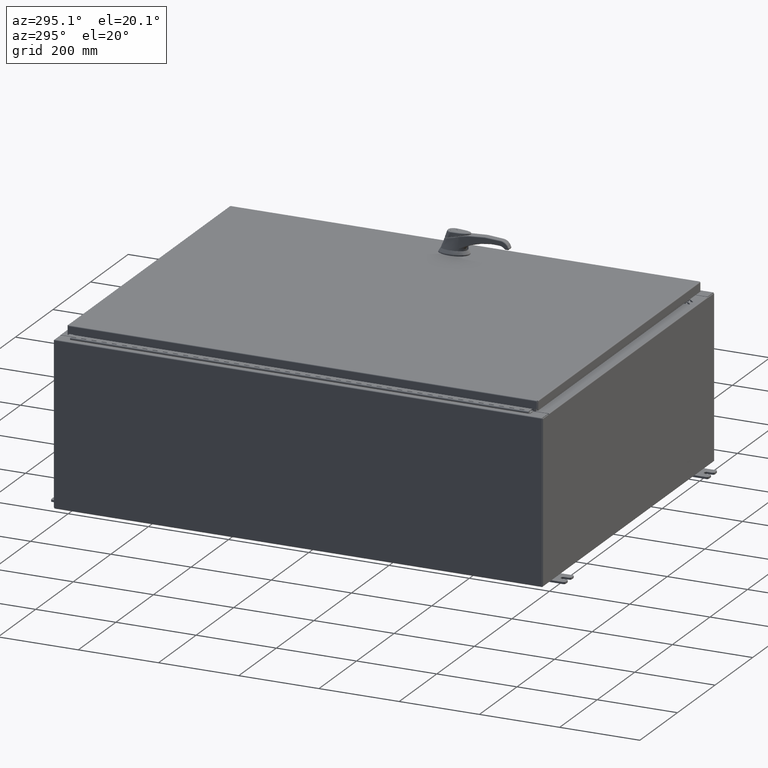
[diagram: clean part render]
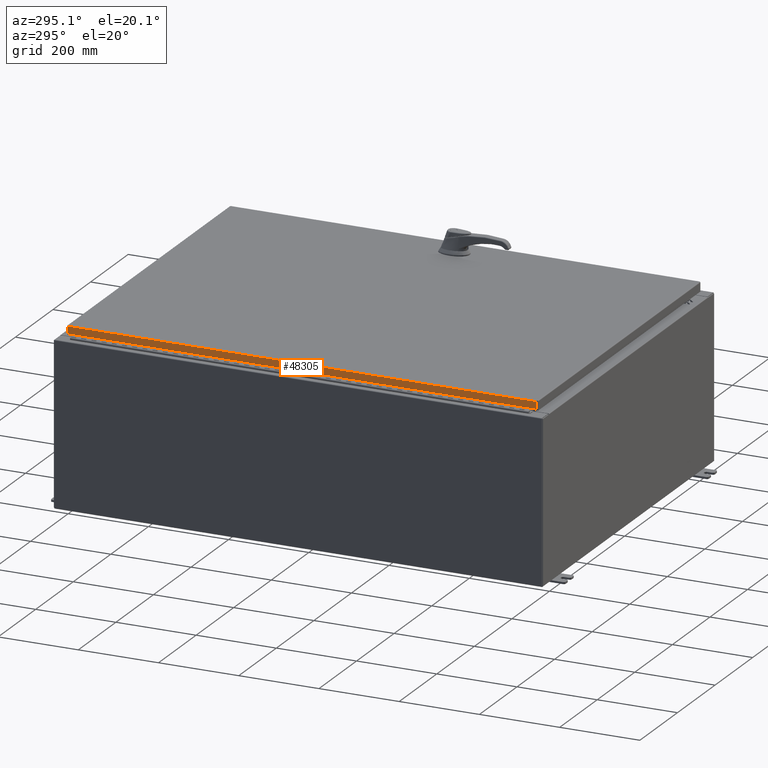
[diagram: same view with one face highlighted and labeled with its STEP entity id]
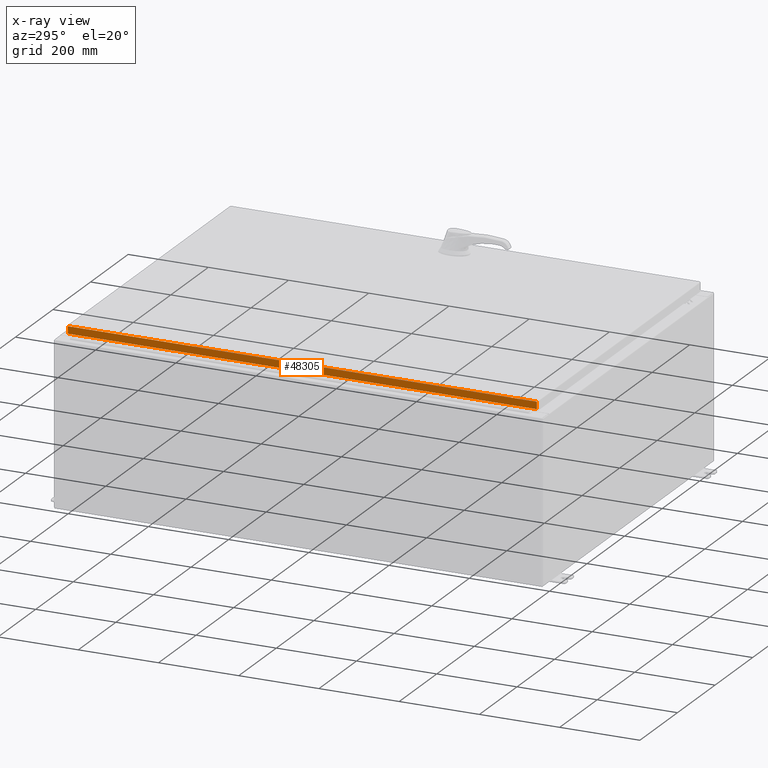
[diagram: x-ray of the same camera — body ghosted, the highlighted face saturated]
A machine part, auxiliary view. The second image highlights one B-rep face of the part: STEP entity #48305.
The next image is the same camera in x-ray: the body ghosted, the highlighted face saturated — about 0% of this face is hidden behind the body in this view.
In plain terms, the highlighted planar face has unit normal (1, -0, -0).
Its self-contained STEP definition (entity closure, byte-faithful):
#3049 = ORIENTED_EDGE ( 'NONE', *, *, #10889, .F. ) ;
#3899 = EDGE_CURVE ( 'NONE', #78070, #57762, #5974, .T. ) ;
#4075 = ORIENTED_EDGE ( 'NONE', *, *, #3899, .F. ) ;
#5974 = LINE ( 'NONE', #52165, #61081 ) ;
#10889 = EDGE_CURVE ( 'NONE', #99772, #60441, #45279, .T. ) ;
#23452 = CARTESIAN_POINT ( 'NONE',  ( -17.07799999999999600, 1.616160042809321200E-015, 5.207755671951099000E-014 ) ) ;
#26636 = CARTESIAN_POINT ( 'NONE',  ( -17.07799999999999900, -23.09400000000000100, -0.08770000000000004200 ) ) ;
#37664 = AXIS2_PLACEMENT_3D ( 'NONE', #23452, #117296, #55200 ) ;
#45279 = LINE ( 'NONE', #26636, #100432 ) ;
#48305 = ADVANCED_FACE ( 'NONE', ( #71487 ), #106902, .F. ) ;
#52165 = CARTESIAN_POINT ( 'NONE',  ( -17.07800000000000300, -23.09400000000000100, -0.7949999999999997100 ) ) ;
#55200 = DIRECTION ( 'NONE',  ( -3.034122441942816500E-015, 0.0000000000000000000, -1.000000000000000000 ) ) ;
#57258 = CARTESIAN_POINT ( 'NONE',  ( -17.07799999999999900, -23.00515786437626900, -0.08770000000000334500 ) ) ;
#57762 = VERTEX_POINT ( 'NONE', #118984 ) ;
#60441 = VERTEX_POINT ( 'NONE', #57258 ) ;
#61081 = VECTOR ( 'NONE', #62598, 39.37007874015748100 ) ;
#62598 = DIRECTION ( 'NONE',  ( 9.463403459476099200E-017, 1.000000000000000000, 1.212498568245375300E-016 ) ) ;
#63641 = ORIENTED_EDGE ( 'NONE', *, *, #119335, .F. ) ;
#64443 = CARTESIAN_POINT ( 'NONE',  ( -17.07799999999999900, -23.00515786437627200, -0.07469999999999976700 ) ) ;
#67462 = DIRECTION ( 'NONE',  ( -9.463403459476019000E-017, -1.000000000000000000, 1.419510518921414800E-016 ) ) ;
#67660 = EDGE_CURVE ( 'NONE', #99772, #57762, #118292, .T. ) ;
#71487 = FACE_OUTER_BOUND ( 'NONE', #107341, .T. ) ;
#74883 = DIRECTION ( 'NONE',  ( -3.034122441942816100E-015, 6.982962677686267500E-015, -1.000000000000000000 ) ) ;
#78032 = ORIENTED_EDGE ( 'NONE', *, *, #67660, .T. ) ;
#78070 = VERTEX_POINT ( 'NONE', #119365 ) ;
#93539 = CARTESIAN_POINT ( 'NONE',  ( -17.07799999999999600, 23.00515786437627200, 2.127217154807312100E-013 ) ) ;
#99772 = VERTEX_POINT ( 'NONE', #100554 ) ;
#100432 = VECTOR ( 'NONE', #67462, 39.37007874015748100 ) ;
#100554 = CARTESIAN_POINT ( 'NONE',  ( -17.07799999999999600, 23.00515786437627200, -0.08770000000000659200 ) ) ;
#106902 = PLANE ( 'NONE',  #37664 ) ;
#107341 = EDGE_LOOP ( 'NONE', ( #3049, #78032, #4075, #63641 ) ) ;
#114351 = DIRECTION ( 'NONE',  ( -3.034122441942816100E-015, 6.982962677686267500E-015, -1.000000000000000000 ) ) ;
#115033 = VECTOR ( 'NONE', #114351, 39.37007874015748100 ) ;
#117296 = DIRECTION ( 'NONE',  ( 1.000000000000000000, -9.463403459476060900E-017, -3.034122441942816500E-015 ) ) ;
#118292 = LINE ( 'NONE', #93539, #115033 ) ;
#118984 = CARTESIAN_POINT ( 'NONE',  ( -17.07799999999999600, 23.00515786437627600, -0.7949999999999941600 ) ) ;
#119335 = EDGE_CURVE ( 'NONE', #60441, #78070, #128991, .T. ) ;
#119365 = CARTESIAN_POINT ( 'NONE',  ( -17.07800000000000300, -23.00515786437626900, -0.7949999999999996000 ) ) ;
#125760 = VECTOR ( 'NONE', #74883, 39.37007874015748100 ) ;
#128991 = LINE ( 'NONE', #64443, #125760 ) ;